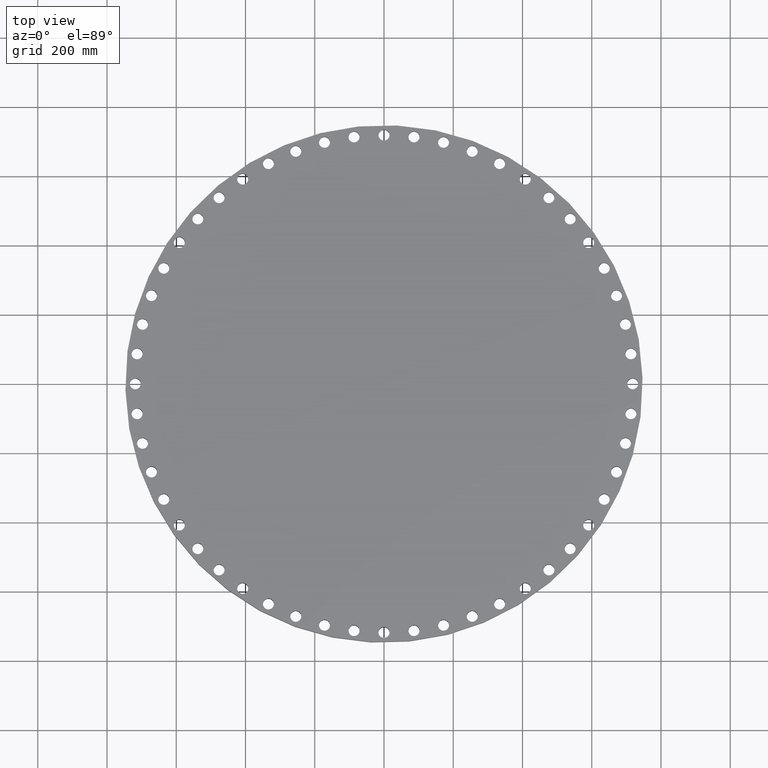
[diagram: clean part render]
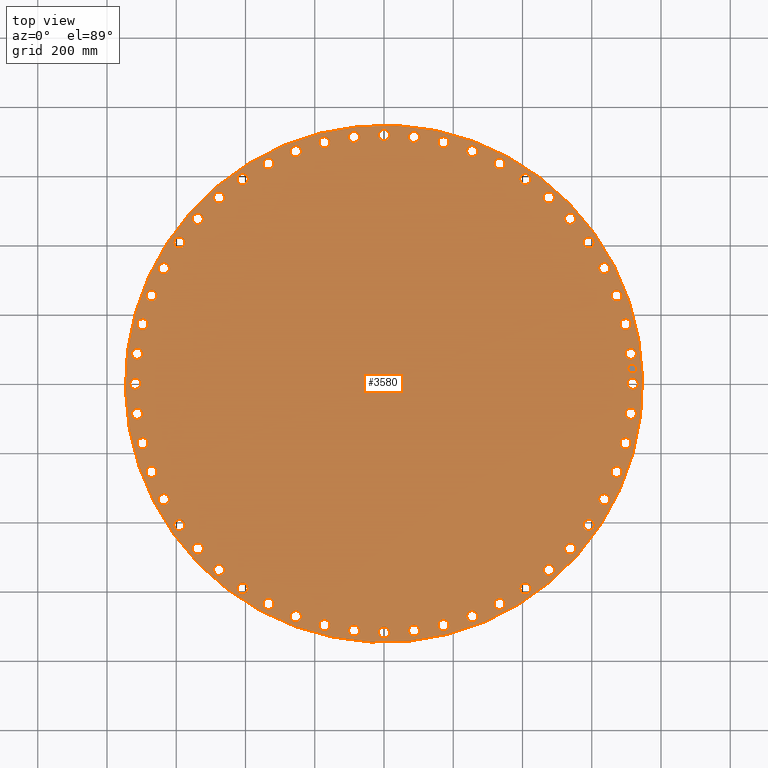
[diagram: same view with one face highlighted and labeled with its STEP entity id]
A machine part, top view. The second image highlights one B-rep face of the part: STEP entity #3580.
In plain terms, the highlighted planar face has unit normal (0, 0, -1).
Its self-contained STEP definition (entity closure, byte-faithful):
#65=AXIS2_PLACEMENT_3D('Circle Axis2P3D',#63,#64,$) ;
#82=AXIS2_PLACEMENT_3D('Circle Axis2P3D',#80,#81,$) ;
#115=AXIS2_PLACEMENT_3D('Circle Axis2P3D',#113,#114,$) ;
#139=AXIS2_PLACEMENT_3D('Circle Axis2P3D',#137,#138,$) ;
#1173=AXIS2_PLACEMENT_3D('Circle Axis2P3D',#1171,#1172,$) ;
#1185=AXIS2_PLACEMENT_3D('Circle Axis2P3D',#1183,#1184,$) ;
#1216=AXIS2_PLACEMENT_3D('Circle Axis2P3D',#1214,#1215,$) ;
#1228=AXIS2_PLACEMENT_3D('Circle Axis2P3D',#1226,#1227,$) ;
#1259=AXIS2_PLACEMENT_3D('Circle Axis2P3D',#1257,#1258,$) ;
#1271=AXIS2_PLACEMENT_3D('Circle Axis2P3D',#1269,#1270,$) ;
#1302=AXIS2_PLACEMENT_3D('Circle Axis2P3D',#1300,#1301,$) ;
#1314=AXIS2_PLACEMENT_3D('Circle Axis2P3D',#1312,#1313,$) ;
#1345=AXIS2_PLACEMENT_3D('Circle Axis2P3D',#1343,#1344,$) ;
#1357=AXIS2_PLACEMENT_3D('Circle Axis2P3D',#1355,#1356,$) ;
#1388=AXIS2_PLACEMENT_3D('Circle Axis2P3D',#1386,#1387,$) ;
#1400=AXIS2_PLACEMENT_3D('Circle Axis2P3D',#1398,#1399,$) ;
#1431=AXIS2_PLACEMENT_3D('Circle Axis2P3D',#1429,#1430,$) ;
#1443=AXIS2_PLACEMENT_3D('Circle Axis2P3D',#1441,#1442,$) ;
#1474=AXIS2_PLACEMENT_3D('Circle Axis2P3D',#1472,#1473,$) ;
#1486=AXIS2_PLACEMENT_3D('Circle Axis2P3D',#1484,#1485,$) ;
#1517=AXIS2_PLACEMENT_3D('Circle Axis2P3D',#1515,#1516,$) ;
#1529=AXIS2_PLACEMENT_3D('Circle Axis2P3D',#1527,#1528,$) ;
#1560=AXIS2_PLACEMENT_3D('Circle Axis2P3D',#1558,#1559,$) ;
#1572=AXIS2_PLACEMENT_3D('Circle Axis2P3D',#1570,#1571,$) ;
#1603=AXIS2_PLACEMENT_3D('Circle Axis2P3D',#1601,#1602,$) ;
#1615=AXIS2_PLACEMENT_3D('Circle Axis2P3D',#1613,#1614,$) ;
#1646=AXIS2_PLACEMENT_3D('Circle Axis2P3D',#1644,#1645,$) ;
#1658=AXIS2_PLACEMENT_3D('Circle Axis2P3D',#1656,#1657,$) ;
#1689=AXIS2_PLACEMENT_3D('Circle Axis2P3D',#1687,#1688,$) ;
#1701=AXIS2_PLACEMENT_3D('Circle Axis2P3D',#1699,#1700,$) ;
#1732=AXIS2_PLACEMENT_3D('Circle Axis2P3D',#1730,#1731,$) ;
#1744=AXIS2_PLACEMENT_3D('Circle Axis2P3D',#1742,#1743,$) ;
#1775=AXIS2_PLACEMENT_3D('Circle Axis2P3D',#1773,#1774,$) ;
#1787=AXIS2_PLACEMENT_3D('Circle Axis2P3D',#1785,#1786,$) ;
#1818=AXIS2_PLACEMENT_3D('Circle Axis2P3D',#1816,#1817,$) ;
#1830=AXIS2_PLACEMENT_3D('Circle Axis2P3D',#1828,#1829,$) ;
#1861=AXIS2_PLACEMENT_3D('Circle Axis2P3D',#1859,#1860,$) ;
#1873=AXIS2_PLACEMENT_3D('Circle Axis2P3D',#1871,#1872,$) ;
#1904=AXIS2_PLACEMENT_3D('Circle Axis2P3D',#1902,#1903,$) ;
#1916=AXIS2_PLACEMENT_3D('Circle Axis2P3D',#1914,#1915,$) ;
#1947=AXIS2_PLACEMENT_3D('Circle Axis2P3D',#1945,#1946,$) ;
#1959=AXIS2_PLACEMENT_3D('Circle Axis2P3D',#1957,#1958,$) ;
#1990=AXIS2_PLACEMENT_3D('Circle Axis2P3D',#1988,#1989,$) ;
#2002=AXIS2_PLACEMENT_3D('Circle Axis2P3D',#2000,#2001,$) ;
#2033=AXIS2_PLACEMENT_3D('Circle Axis2P3D',#2031,#2032,$) ;
#2045=AXIS2_PLACEMENT_3D('Circle Axis2P3D',#2043,#2044,$) ;
#2076=AXIS2_PLACEMENT_3D('Circle Axis2P3D',#2074,#2075,$) ;
#2088=AXIS2_PLACEMENT_3D('Circle Axis2P3D',#2086,#2087,$) ;
#2119=AXIS2_PLACEMENT_3D('Circle Axis2P3D',#2117,#2118,$) ;
#2131=AXIS2_PLACEMENT_3D('Circle Axis2P3D',#2129,#2130,$) ;
#2162=AXIS2_PLACEMENT_3D('Circle Axis2P3D',#2160,#2161,$) ;
#2174=AXIS2_PLACEMENT_3D('Circle Axis2P3D',#2172,#2173,$) ;
#2205=AXIS2_PLACEMENT_3D('Circle Axis2P3D',#2203,#2204,$) ;
#2217=AXIS2_PLACEMENT_3D('Circle Axis2P3D',#2215,#2216,$) ;
#2248=AXIS2_PLACEMENT_3D('Circle Axis2P3D',#2246,#2247,$) ;
#2260=AXIS2_PLACEMENT_3D('Circle Axis2P3D',#2258,#2259,$) ;
#2291=AXIS2_PLACEMENT_3D('Circle Axis2P3D',#2289,#2290,$) ;
#2303=AXIS2_PLACEMENT_3D('Circle Axis2P3D',#2301,#2302,$) ;
#2334=AXIS2_PLACEMENT_3D('Circle Axis2P3D',#2332,#2333,$) ;
#2346=AXIS2_PLACEMENT_3D('Circle Axis2P3D',#2344,#2345,$) ;
#2377=AXIS2_PLACEMENT_3D('Circle Axis2P3D',#2375,#2376,$) ;
#2389=AXIS2_PLACEMENT_3D('Circle Axis2P3D',#2387,#2388,$) ;
#2420=AXIS2_PLACEMENT_3D('Circle Axis2P3D',#2418,#2419,$) ;
#2432=AXIS2_PLACEMENT_3D('Circle Axis2P3D',#2430,#2431,$) ;
#2463=AXIS2_PLACEMENT_3D('Circle Axis2P3D',#2461,#2462,$) ;
#2475=AXIS2_PLACEMENT_3D('Circle Axis2P3D',#2473,#2474,$) ;
#2506=AXIS2_PLACEMENT_3D('Circle Axis2P3D',#2504,#2505,$) ;
#2518=AXIS2_PLACEMENT_3D('Circle Axis2P3D',#2516,#2517,$) ;
#2549=AXIS2_PLACEMENT_3D('Circle Axis2P3D',#2547,#2548,$) ;
#2561=AXIS2_PLACEMENT_3D('Circle Axis2P3D',#2559,#2560,$) ;
#2592=AXIS2_PLACEMENT_3D('Circle Axis2P3D',#2590,#2591,$) ;
#2604=AXIS2_PLACEMENT_3D('Circle Axis2P3D',#2602,#2603,$) ;
#2635=AXIS2_PLACEMENT_3D('Circle Axis2P3D',#2633,#2634,$) ;
#2647=AXIS2_PLACEMENT_3D('Circle Axis2P3D',#2645,#2646,$) ;
#2678=AXIS2_PLACEMENT_3D('Circle Axis2P3D',#2676,#2677,$) ;
#2690=AXIS2_PLACEMENT_3D('Circle Axis2P3D',#2688,#2689,$) ;
#2721=AXIS2_PLACEMENT_3D('Circle Axis2P3D',#2719,#2720,$) ;
#2733=AXIS2_PLACEMENT_3D('Circle Axis2P3D',#2731,#2732,$) ;
#2764=AXIS2_PLACEMENT_3D('Circle Axis2P3D',#2762,#2763,$) ;
#2776=AXIS2_PLACEMENT_3D('Circle Axis2P3D',#2774,#2775,$) ;
#2807=AXIS2_PLACEMENT_3D('Circle Axis2P3D',#2805,#2806,$) ;
#2819=AXIS2_PLACEMENT_3D('Circle Axis2P3D',#2817,#2818,$) ;
#2850=AXIS2_PLACEMENT_3D('Circle Axis2P3D',#2848,#2849,$) ;
#2862=AXIS2_PLACEMENT_3D('Circle Axis2P3D',#2860,#2861,$) ;
#2893=AXIS2_PLACEMENT_3D('Circle Axis2P3D',#2891,#2892,$) ;
#2905=AXIS2_PLACEMENT_3D('Circle Axis2P3D',#2903,#2904,$) ;
#2936=AXIS2_PLACEMENT_3D('Circle Axis2P3D',#2934,#2935,$) ;
#2948=AXIS2_PLACEMENT_3D('Circle Axis2P3D',#2946,#2947,$) ;
#2979=AXIS2_PLACEMENT_3D('Circle Axis2P3D',#2977,#2978,$) ;
#2991=AXIS2_PLACEMENT_3D('Circle Axis2P3D',#2989,#2990,$) ;
#3022=AXIS2_PLACEMENT_3D('Circle Axis2P3D',#3020,#3021,$) ;
#3034=AXIS2_PLACEMENT_3D('Circle Axis2P3D',#3032,#3033,$) ;
#3065=AXIS2_PLACEMENT_3D('Circle Axis2P3D',#3063,#3064,$) ;
#3077=AXIS2_PLACEMENT_3D('Circle Axis2P3D',#3075,#3076,$) ;
#3108=AXIS2_PLACEMENT_3D('Circle Axis2P3D',#3106,#3107,$) ;
#3120=AXIS2_PLACEMENT_3D('Circle Axis2P3D',#3118,#3119,$) ;
#3151=AXIS2_PLACEMENT_3D('Circle Axis2P3D',#3149,#3150,$) ;
#3163=AXIS2_PLACEMENT_3D('Circle Axis2P3D',#3161,#3162,$) ;
#3194=AXIS2_PLACEMENT_3D('Circle Axis2P3D',#3192,#3193,$) ;
#3206=AXIS2_PLACEMENT_3D('Circle Axis2P3D',#3204,#3205,$) ;
#3237=AXIS2_PLACEMENT_3D('Circle Axis2P3D',#3235,#3236,$) ;
#3249=AXIS2_PLACEMENT_3D('Circle Axis2P3D',#3247,#3248,$) ;
#3280=AXIS2_PLACEMENT_3D('Circle Axis2P3D',#3278,#3279,$) ;
#3292=AXIS2_PLACEMENT_3D('Circle Axis2P3D',#3290,#3291,$) ;
#3323=AXIS2_PLACEMENT_3D('Circle Axis2P3D',#3321,#3322,$) ;
#3335=AXIS2_PLACEMENT_3D('Circle Axis2P3D',#3333,#3334,$) ;
#3348=AXIS2_PLACEMENT_3D('Plane Axis2P3D',#3345,#3346,#3347) ;
#3564=AXIS2_PLACEMENT_3D('Circle Axis2P3D',#3562,#3563,$) ;
#3573=AXIS2_PLACEMENT_3D('Circle Axis2P3D',#3571,#3572,$) ;
#46=CARTESIAN_POINT('Vertex',(27.7315108989,0.299640961629,3.25000000001)) ;
#60=CARTESIAN_POINT('Vertex',(28.8284891013,-0.299640961629,3.25000000001)) ;
#63=CARTESIAN_POINT('Axis2P3D Location',(28.2800000001,0.,3.25000000001)) ;
#80=CARTESIAN_POINT('Axis2P3D Location',(28.2800000001,0.,3.25000000001)) ;
#110=CARTESIAN_POINT('Vertex',(-14.0975079627,-25.8053152325,3.25000000001)) ;
#113=CARTESIAN_POINT('Axis2P3D Location',(0.,0.,3.25000000001)) ;
#117=CARTESIAN_POINT('Vertex',(14.0975079627,25.8053152325,3.25000000001)) ;
#137=CARTESIAN_POINT('Axis2P3D Location',(0.,0.,3.25000000001)) ;
#1161=CARTESIAN_POINT('Vertex',(-27.5654346883,3.04520802057,3.25000000001)) ;
#1168=CARTESIAN_POINT('Vertex',(-28.5821792309,3.7723466147,3.25000000001)) ;
#1171=CARTESIAN_POINT('Axis2P3D Location',(-28.0738069596,3.40877731763,3.25000000001)) ;
#1183=CARTESIAN_POINT('Axis2P3D Location',(-28.0738069596,3.40877731763,3.25000000001)) ;
#1204=CARTESIAN_POINT('Vertex',(26.997392368,-6.34565101262,3.25000000001)) ;
#1211=CARTESIAN_POINT('Vertex',(27.9190768259,-7.19004295954,3.25000000001)) ;
#1214=CARTESIAN_POINT('Axis2P3D Location',(27.4582345969,-6.76784698608,3.25000000001)) ;
#1226=CARTESIAN_POINT('Axis2P3D Location',(27.4582345969,-6.76784698608,3.25000000001)) ;
#1247=CARTESIAN_POINT('Vertex',(-26.997392368,6.34565101262,3.25000000001)) ;
#1254=CARTESIAN_POINT('Vertex',(-27.9190768259,7.19004295954,3.25000000001)) ;
#1257=CARTESIAN_POINT('Axis2P3D Location',(-27.4582345969,6.76784698608,3.25000000001)) ;
#1269=CARTESIAN_POINT('Axis2P3D Location',(-27.4582345969,6.76784698608,3.25000000001)) ;
#1290=CARTESIAN_POINT('Vertex',(26.0356672741,-9.55356012374,3.25000000001)) ;
#1297=CARTESIAN_POINT('Vertex',(26.8488514124,-10.5028922875,3.25000000001)) ;
#1300=CARTESIAN_POINT('Axis2P3D Location',(26.4422593432,-10.0282262056,3.25000000001)) ;
#1312=CARTESIAN_POINT('Axis2P3D Location',(26.4422593432,-10.0282262056,3.25000000001)) ;
#1333=CARTESIAN_POINT('Vertex',(-26.0356672741,9.55356012374,3.25000000001)) ;
#1340=CARTESIAN_POINT('Vertex',(-26.8488514124,10.5028922875,3.25000000001)) ;
#1343=CARTESIAN_POINT('Axis2P3D Location',(-26.4422593432,10.0282262056,3.25000000001)) ;
#1355=CARTESIAN_POINT('Axis2P3D Location',(-26.4422593432,10.0282262056,3.25000000001)) ;
#1376=CARTESIAN_POINT('Vertex',(24.6942835241,-12.6221568155,3.25000000001)) ;
#1383=CARTESIAN_POINT('Vertex',(25.3871092871,-13.6625857954,3.25000000001)) ;
#1386=CARTESIAN_POINT('Axis2P3D Location',(25.0406964056,-13.1423713055,3.25000000001)) ;
#1398=CARTESIAN_POINT('Axis2P3D Location',(25.0406964056,-13.1423713055,3.25000000001)) ;
#1419=CARTESIAN_POINT('Vertex',(-24.6942835241,12.6221568155,3.25000000001)) ;
#1426=CARTESIAN_POINT('Vertex',(-25.3871092871,13.6625857954,3.25000000001)) ;
#1429=CARTESIAN_POINT('Axis2P3D Location',(-25.0406964056,13.1423713055,3.25000000001)) ;
#1441=CARTESIAN_POINT('Axis2P3D Location',(-25.0406964056,13.1423713055,3.25000000001)) ;
#1462=CARTESIAN_POINT('Vertex',(22.9928015137,-15.5066940383,3.25000000001)) ;
#1469=CARTESIAN_POINT('Vertex',(23.5551659415,-16.623048037,3.25000000001)) ;
#1472=CARTESIAN_POINT('Axis2P3D Location',(23.2739837276,-16.0648710376,3.25000000001)) ;
#1484=CARTESIAN_POINT('Axis2P3D Location',(23.2739837276,-16.0648710376,3.25000000001)) ;
#1505=CARTESIAN_POINT('Vertex',(-22.9928015137,15.5066940383,3.25000000001)) ;
#1512=CARTESIAN_POINT('Vertex',(-23.5551659415,16.623048037,3.25000000001)) ;
#1515=CARTESIAN_POINT('Axis2P3D Location',(-23.2739837276,16.0648710376,3.25000000001)) ;
#1527=CARTESIAN_POINT('Axis2P3D Location',(-23.2739837276,16.0648710376,3.25000000001)) ;
#1548=CARTESIAN_POINT('Vertex',(20.9560326819,-18.165108744,3.25000000001)) ;
#1555=CARTESIAN_POINT('Vertex',(21.3797352349,-19.3411088063,3.25000000001)) ;
#1558=CARTESIAN_POINT('Axis2P3D Location',(21.1678839584,-18.7531087751,3.25000000001)) ;
#1570=CARTESIAN_POINT('Axis2P3D Location',(21.1678839584,-18.7531087751,3.25000000001)) ;
#1591=CARTESIAN_POINT('Vertex',(-20.9560326819,18.165108744,3.25000000001)) ;
#1598=CARTESIAN_POINT('Vertex',(-21.3797352349,19.3411088063,3.25000000001)) ;
#1601=CARTESIAN_POINT('Axis2P3D Location',(-21.1678839584,18.7531087751,3.25000000001)) ;
#1613=CARTESIAN_POINT('Axis2P3D Location',(-21.1678839584,18.7531087751,3.25000000001)) ;
#1634=CARTESIAN_POINT('Vertex',(18.6136777047,-20.5586352599,3.25000000001)) ;
#1641=CARTESIAN_POINT('Vertex',(18.8925398455,-21.7771326568,3.25000000001)) ;
#1644=CARTESIAN_POINT('Axis2P3D Location',(18.7531087751,-21.1678839584,3.25000000001)) ;
#1656=CARTESIAN_POINT('Axis2P3D Location',(18.7531087751,-21.1678839584,3.25000000001)) ;
#1677=CARTESIAN_POINT('Vertex',(-18.6136777047,20.5586352599,3.25000000001)) ;
#1684=CARTESIAN_POINT('Vertex',(-18.8925398455,21.7771326568,3.25000000001)) ;
#1687=CARTESIAN_POINT('Axis2P3D Location',(-18.7531087751,21.1678839584,3.25000000001)) ;
#1699=CARTESIAN_POINT('Axis2P3D Location',(-18.7531087751,21.1678839584,3.25000000001)) ;
#1720=CARTESIAN_POINT('Vertex',(15.9998933923,-22.6523705797,3.25000000001)) ;
#1727=CARTESIAN_POINT('Vertex',(16.129848683,-23.8955968754,3.25000000001)) ;
#1730=CARTESIAN_POINT('Axis2P3D Location',(16.0648710376,-23.2739837276,3.25000000001)) ;
#1742=CARTESIAN_POINT('Axis2P3D Location',(16.0648710376,-23.2739837276,3.25000000001)) ;
#1763=CARTESIAN_POINT('Vertex',(-15.9998933923,22.6523705797,3.25000000001)) ;
#1770=CARTESIAN_POINT('Vertex',(-16.129848683,23.8955968754,3.25000000001)) ;
#1773=CARTESIAN_POINT('Axis2P3D Location',(-16.0648710376,23.2739837276,3.25000000001)) ;
#1785=CARTESIAN_POINT('Axis2P3D Location',(-16.0648710376,23.2739837276,3.25000000001)) ;
#1806=CARTESIAN_POINT('Vertex',(13.1527946055,-24.4157833278,3.25000000001)) ;
#1813=CARTESIAN_POINT('Vertex',(13.1319480054,-25.6656094834,3.25000000001)) ;
#1816=CARTESIAN_POINT('Axis2P3D Location',(13.1423713055,-25.0406964056,3.25000000001)) ;
#1828=CARTESIAN_POINT('Axis2P3D Location',(13.1423713055,-25.0406964056,3.25000000001)) ;
#1849=CARTESIAN_POINT('Vertex',(-13.1527946055,24.4157833278,3.25000000001)) ;
#1856=CARTESIAN_POINT('Vertex',(-13.1319480054,25.6656094834,3.25000000001)) ;
#1859=CARTESIAN_POINT('Axis2P3D Location',(-13.1423713055,25.0406964056,3.25000000001)) ;
#1871=CARTESIAN_POINT('Axis2P3D Location',(-13.1423713055,25.0406964056,3.25000000001)) ;
#1892=CARTESIAN_POINT('Vertex',(10.1138984559,-25.8231589754,3.25000000001)) ;
#1899=CARTESIAN_POINT('Vertex',(9.94255395528,-27.0613597111,3.25000000001)) ;
#1902=CARTESIAN_POINT('Axis2P3D Location',(10.0282262056,-26.4422593432,3.25000000001)) ;
#1914=CARTESIAN_POINT('Axis2P3D Location',(10.0282262056,-26.4422593432,3.25000000001)) ;
#1935=CARTESIAN_POINT('Vertex',(-10.1138984559,25.8231589754,3.25000000001)) ;
#1942=CARTESIAN_POINT('Vertex',(-9.94255395528,27.0613597111,3.25000000001)) ;
#1945=CARTESIAN_POINT('Axis2P3D Location',(-10.0282262056,26.4422593432,3.25000000001)) ;
#1957=CARTESIAN_POINT('Axis2P3D Location',(-10.0282262056,26.4422593432,3.25000000001)) ;
#1978=CARTESIAN_POINT('Vertex',(6.92751889233,-26.8539748164,3.25000000001)) ;
#1985=CARTESIAN_POINT('Vertex',(6.60817507982,-28.0624943774,3.25000000001)) ;
#1988=CARTESIAN_POINT('Axis2P3D Location',(6.76784698608,-27.4582345969,3.25000000001)) ;
#2000=CARTESIAN_POINT('Axis2P3D Location',(6.76784698608,-27.4582345969,3.25000000001)) ;
#2021=CARTESIAN_POINT('Vertex',(-6.92751889233,26.8539748164,3.25000000001)) ;
#2028=CARTESIAN_POINT('Vertex',(-6.60817507982,28.0624943774,3.25000000001)) ;
#2031=CARTESIAN_POINT('Axis2P3D Location',(-6.76784698608,27.4582345969,3.25000000001)) ;
#2043=CARTESIAN_POINT('Axis2P3D Location',(-6.76784698608,27.4582345969,3.25000000001)) ;
#2064=CARTESIAN_POINT('Vertex',(3.64012050387,-27.4931992347,3.25000000001)) ;
#2071=CARTESIAN_POINT('Vertex',(3.17743413139,-28.6544146845,3.25000000001)) ;
#2074=CARTESIAN_POINT('Axis2P3D Location',(3.40877731763,-28.0738069596,3.25000000001)) ;
#2086=CARTESIAN_POINT('Axis2P3D Location',(3.40877731763,-28.0738069596,3.25000000001)) ;
#2107=CARTESIAN_POINT('Vertex',(-3.64012050387,27.4931992347,3.25000000001)) ;
#2114=CARTESIAN_POINT('Vertex',(-3.17743413139,28.6544146845,3.25000000001)) ;
#2117=CARTESIAN_POINT('Axis2P3D Location',(-3.40877731763,28.0738069596,3.25000000001)) ;
#2129=CARTESIAN_POINT('Axis2P3D Location',(-3.40877731763,28.0738069596,3.25000000001)) ;
#2150=CARTESIAN_POINT('Vertex',(0.299640961629,-27.7315108989,3.25000000001)) ;
#2157=CARTESIAN_POINT('Vertex',(-0.299640961629,-28.8284891013,3.25000000001)) ;
#2160=CARTESIAN_POINT('Axis2P3D Location',(8.01107200131E-015,-28.2800000001,3.25000000001)) ;
#2172=CARTESIAN_POINT('Axis2P3D Location',(8.01107200131E-015,-28.2800000001,3.25000000001)) ;
#2193=CARTESIAN_POINT('Vertex',(-0.299640961629,27.7315108989,3.25000000001)) ;
#2200=CARTESIAN_POINT('Vertex',(0.299640961629,28.8284891013,3.25000000001)) ;
#2203=CARTESIAN_POINT('Axis2P3D Location',(-5.194951722E-015,28.2800000001,3.25000000001)) ;
#2215=CARTESIAN_POINT('Axis2P3D Location',(-5.194951722E-015,28.2800000001,3.25000000001)) ;
#2236=CARTESIAN_POINT('Vertex',(-3.04520802057,-27.5654346883,3.25000000001)) ;
#2243=CARTESIAN_POINT('Vertex',(-3.7723466147,-28.5821792309,3.25000000001)) ;
#2246=CARTESIAN_POINT('Axis2P3D Location',(-3.40877731763,-28.0738069596,3.25000000001)) ;
#2258=CARTESIAN_POINT('Axis2P3D Location',(-3.40877731763,-28.0738069596,3.25000000001)) ;
#2279=CARTESIAN_POINT('Vertex',(3.04520802057,27.5654346883,3.25000000001)) ;
#2286=CARTESIAN_POINT('Vertex',(3.7723466147,28.5821792309,3.25000000001)) ;
#2289=CARTESIAN_POINT('Axis2P3D Location',(3.40877731763,28.0738069596,3.25000000001)) ;
#2301=CARTESIAN_POINT('Axis2P3D Location',(3.40877731763,28.0738069596,3.25000000001)) ;
#2322=CARTESIAN_POINT('Vertex',(-6.34565101262,-26.997392368,3.25000000001)) ;
#2329=CARTESIAN_POINT('Vertex',(-7.19004295954,-27.9190768259,3.25000000001)) ;
#2332=CARTESIAN_POINT('Axis2P3D Location',(-6.76784698608,-27.4582345969,3.25000000001)) ;
#2344=CARTESIAN_POINT('Axis2P3D Location',(-6.76784698608,-27.4582345969,3.25000000001)) ;
#2365=CARTESIAN_POINT('Vertex',(6.34565101262,26.997392368,3.25000000001)) ;
#2372=CARTESIAN_POINT('Vertex',(7.19004295954,27.9190768259,3.25000000001)) ;
#2375=CARTESIAN_POINT('Axis2P3D Location',(6.76784698608,27.4582345969,3.25000000001)) ;
#2387=CARTESIAN_POINT('Axis2P3D Location',(6.76784698608,27.4582345969,3.25000000001)) ;
#2408=CARTESIAN_POINT('Vertex',(-9.55356012374,-26.0356672741,3.25000000001)) ;
#2415=CARTESIAN_POINT('Vertex',(-10.5028922875,-26.8488514124,3.25000000001)) ;
#2418=CARTESIAN_POINT('Axis2P3D Location',(-10.0282262056,-26.4422593432,3.25000000001)) ;
#2430=CARTESIAN_POINT('Axis2P3D Location',(-10.0282262056,-26.4422593432,3.25000000001)) ;
#2451=CARTESIAN_POINT('Vertex',(9.55356012374,26.0356672741,3.25000000001)) ;
#2458=CARTESIAN_POINT('Vertex',(10.5028922875,26.8488514124,3.25000000001)) ;
#2461=CARTESIAN_POINT('Axis2P3D Location',(10.0282262056,26.4422593432,3.25000000001)) ;
#2473=CARTESIAN_POINT('Axis2P3D Location',(10.0282262056,26.4422593432,3.25000000001)) ;
#2494=CARTESIAN_POINT('Vertex',(-12.6221568155,-24.6942835241,3.25000000001)) ;
#2501=CARTESIAN_POINT('Vertex',(-13.6625857954,-25.3871092871,3.25000000001)) ;
#2504=CARTESIAN_POINT('Axis2P3D Location',(-13.1423713055,-25.0406964056,3.25000000001)) ;
#2516=CARTESIAN_POINT('Axis2P3D Location',(-13.1423713055,-25.0406964056,3.25000000001)) ;
#2537=CARTESIAN_POINT('Vertex',(12.6221568155,24.6942835241,3.25000000001)) ;
#2544=CARTESIAN_POINT('Vertex',(13.6625857954,25.3871092871,3.25000000001)) ;
#2547=CARTESIAN_POINT('Axis2P3D Location',(13.1423713055,25.0406964056,3.25000000001)) ;
#2559=CARTESIAN_POINT('Axis2P3D Location',(13.1423713055,25.0406964056,3.25000000001)) ;
#2580=CARTESIAN_POINT('Vertex',(-15.5066940383,-22.9928015137,3.25000000001)) ;
#2587=CARTESIAN_POINT('Vertex',(-16.623048037,-23.5551659415,3.25000000001)) ;
#2590=CARTESIAN_POINT('Axis2P3D Location',(-16.0648710376,-23.2739837276,3.25000000001)) ;
#2602=CARTESIAN_POINT('Axis2P3D Location',(-16.0648710376,-23.2739837276,3.25000000001)) ;
#2623=CARTESIAN_POINT('Vertex',(15.5066940383,22.9928015137,3.25000000001)) ;
#2630=CARTESIAN_POINT('Vertex',(16.623048037,23.5551659415,3.25000000001)) ;
#2633=CARTESIAN_POINT('Axis2P3D Location',(16.0648710376,23.2739837276,3.25000000001)) ;
#2645=CARTESIAN_POINT('Axis2P3D Location',(16.0648710376,23.2739837276,3.25000000001)) ;
#2666=CARTESIAN_POINT('Vertex',(-18.165108744,-20.9560326819,3.25000000001)) ;
#2673=CARTESIAN_POINT('Vertex',(-19.3411088063,-21.3797352349,3.25000000001)) ;
#2676=CARTESIAN_POINT('Axis2P3D Location',(-18.7531087751,-21.1678839584,3.25000000001)) ;
#2688=CARTESIAN_POINT('Axis2P3D Location',(-18.7531087751,-21.1678839584,3.25000000001)) ;
#2709=CARTESIAN_POINT('Vertex',(18.165108744,20.9560326819,3.25000000001)) ;
#2716=CARTESIAN_POINT('Vertex',(19.3411088063,21.3797352349,3.25000000001)) ;
#2719=CARTESIAN_POINT('Axis2P3D Location',(18.7531087751,21.1678839584,3.25000000001)) ;
#2731=CARTESIAN_POINT('Axis2P3D Location',(18.7531087751,21.1678839584,3.25000000001)) ;
#2752=CARTESIAN_POINT('Vertex',(-20.5586352599,-18.6136777047,3.25000000001)) ;
#2759=CARTESIAN_POINT('Vertex',(-21.7771326568,-18.8925398455,3.25000000001)) ;
#2762=CARTESIAN_POINT('Axis2P3D Location',(-21.1678839584,-18.7531087751,3.25000000001)) ;
#2774=CARTESIAN_POINT('Axis2P3D Location',(-21.1678839584,-18.7531087751,3.25000000001)) ;
#2795=CARTESIAN_POINT('Vertex',(20.5586352599,18.6136777047,3.25000000001)) ;
#2802=CARTESIAN_POINT('Vertex',(21.7771326568,18.8925398455,3.25000000001)) ;
#2805=CARTESIAN_POINT('Axis2P3D Location',(21.1678839584,18.7531087751,3.25000000001)) ;
#2817=CARTESIAN_POINT('Axis2P3D Location',(21.1678839584,18.7531087751,3.25000000001)) ;
#2838=CARTESIAN_POINT('Vertex',(-22.6523705797,-15.9998933923,3.25000000001)) ;
#2845=CARTESIAN_POINT('Vertex',(-23.8955968754,-16.129848683,3.25000000001)) ;
#2848=CARTESIAN_POINT('Axis2P3D Location',(-23.2739837276,-16.0648710376,3.25000000001)) ;
#2860=CARTESIAN_POINT('Axis2P3D Location',(-23.2739837276,-16.0648710376,3.25000000001)) ;
#2881=CARTESIAN_POINT('Vertex',(22.6523705797,15.9998933923,3.25000000001)) ;
#2888=CARTESIAN_POINT('Vertex',(23.8955968754,16.129848683,3.25000000001)) ;
#2891=CARTESIAN_POINT('Axis2P3D Location',(23.2739837276,16.0648710376,3.25000000001)) ;
#2903=CARTESIAN_POINT('Axis2P3D Location',(23.2739837276,16.0648710376,3.25000000001)) ;
#2924=CARTESIAN_POINT('Vertex',(-24.4157833278,-13.1527946055,3.25000000001)) ;
#2931=CARTESIAN_POINT('Vertex',(-25.6656094834,-13.1319480054,3.25000000001)) ;
#2934=CARTESIAN_POINT('Axis2P3D Location',(-25.0406964056,-13.1423713055,3.25000000001)) ;
#2946=CARTESIAN_POINT('Axis2P3D Location',(-25.0406964056,-13.1423713055,3.25000000001)) ;
#2967=CARTESIAN_POINT('Vertex',(24.4157833278,13.1527946055,3.25000000001)) ;
#2974=CARTESIAN_POINT('Vertex',(25.6656094834,13.1319480054,3.25000000001)) ;
#2977=CARTESIAN_POINT('Axis2P3D Location',(25.0406964056,13.1423713055,3.25000000001)) ;
#2989=CARTESIAN_POINT('Axis2P3D Location',(25.0406964056,13.1423713055,3.25000000001)) ;
#3010=CARTESIAN_POINT('Vertex',(-25.8231589754,-10.1138984559,3.25000000001)) ;
#3017=CARTESIAN_POINT('Vertex',(-27.0613597111,-9.94255395528,3.25000000001)) ;
#3020=CARTESIAN_POINT('Axis2P3D Location',(-26.4422593432,-10.0282262056,3.25000000001)) ;
#3032=CARTESIAN_POINT('Axis2P3D Location',(-26.4422593432,-10.0282262056,3.25000000001)) ;
#3053=CARTESIAN_POINT('Vertex',(25.8231589754,10.1138984559,3.25000000001)) ;
#3060=CARTESIAN_POINT('Vertex',(27.0613597111,9.94255395528,3.25000000001)) ;
#3063=CARTESIAN_POINT('Axis2P3D Location',(26.4422593432,10.0282262056,3.25000000001)) ;
#3075=CARTESIAN_POINT('Axis2P3D Location',(26.4422593432,10.0282262056,3.25000000001)) ;
#3096=CARTESIAN_POINT('Vertex',(-26.8539748164,-6.92751889233,3.25000000001)) ;
#3103=CARTESIAN_POINT('Vertex',(-28.0624943774,-6.60817507982,3.25000000001)) ;
#3106=CARTESIAN_POINT('Axis2P3D Location',(-27.4582345969,-6.76784698608,3.25000000001)) ;
#3118=CARTESIAN_POINT('Axis2P3D Location',(-27.4582345969,-6.76784698608,3.25000000001)) ;
#3139=CARTESIAN_POINT('Vertex',(26.8539748164,6.92751889233,3.25000000001)) ;
#3146=CARTESIAN_POINT('Vertex',(28.0624943774,6.60817507982,3.25000000001)) ;
#3149=CARTESIAN_POINT('Axis2P3D Location',(27.4582345969,6.76784698608,3.25000000001)) ;
#3161=CARTESIAN_POINT('Axis2P3D Location',(27.4582345969,6.76784698608,3.25000000001)) ;
#3182=CARTESIAN_POINT('Vertex',(-27.4931992347,-3.64012050387,3.25000000001)) ;
#3189=CARTESIAN_POINT('Vertex',(-28.6544146845,-3.17743413139,3.25000000001)) ;
#3192=CARTESIAN_POINT('Axis2P3D Location',(-28.0738069596,-3.40877731763,3.25000000001)) ;
#3204=CARTESIAN_POINT('Axis2P3D Location',(-28.0738069596,-3.40877731763,3.25000000001)) ;
#3225=CARTESIAN_POINT('Vertex',(27.4931992347,3.64012050387,3.25000000001)) ;
#3232=CARTESIAN_POINT('Vertex',(28.6544146845,3.17743413139,3.25000000001)) ;
#3235=CARTESIAN_POINT('Axis2P3D Location',(28.0738069596,3.40877731763,3.25000000001)) ;
#3247=CARTESIAN_POINT('Axis2P3D Location',(28.0738069596,3.40877731763,3.25000000001)) ;
#3268=CARTESIAN_POINT('Vertex',(-27.7315108989,-0.299640961629,3.25000000001)) ;
#3275=CARTESIAN_POINT('Vertex',(-28.8284891013,0.299640961629,3.25000000001)) ;
#3278=CARTESIAN_POINT('Axis2P3D Location',(-28.2800000001,-1.60221440026E-014,3.25000000001)) ;
#3290=CARTESIAN_POINT('Axis2P3D Location',(-28.2800000001,-1.60221440026E-014,3.25000000001)) ;
#3311=CARTESIAN_POINT('Vertex',(27.5654346883,-3.04520802057,3.25000000001)) ;
#3318=CARTESIAN_POINT('Vertex',(28.5821792309,-3.7723466147,3.25000000001)) ;
#3321=CARTESIAN_POINT('Axis2P3D Location',(28.0738069596,-3.40877731763,3.25000000001)) ;
#3333=CARTESIAN_POINT('Axis2P3D Location',(28.0738069596,-3.40877731763,3.25000000001)) ;
#3345=CARTESIAN_POINT('Axis2P3D Location',(0.,29.4050000001,3.25000000001)) ;
#3562=CARTESIAN_POINT('Axis2P3D Location',(28.2284046735,1.70750390711,3.25000000001)) ;
#3566=CARTESIAN_POINT('Vertex',(28.1982154248,2.20659168422,3.25000000001)) ;
#3568=CARTESIAN_POINT('Vertex',(28.2585939223,1.20841613,3.25000000001)) ;
#3571=CARTESIAN_POINT('Axis2P3D Location',(28.2284046735,1.70750390711,3.25000000001)) ;
#64=DIRECTION('Axis2P3D Direction',(0.,-0.,-0.0393700787402)) ;
#81=DIRECTION('Axis2P3D Direction',(0.,-0.,-0.0393700787402)) ;
#114=DIRECTION('Axis2P3D Direction',(0.,0.,-0.0393700787402)) ;
#138=DIRECTION('Axis2P3D Direction',(0.,0.,-0.0393700787402)) ;
#1172=DIRECTION('Axis2P3D Direction',(0.,0.,-0.0393700787402)) ;
#1184=DIRECTION('Axis2P3D Direction',(0.,0.,-0.0393700787402)) ;
#1215=DIRECTION('Axis2P3D Direction',(0.,-0.,-0.0393700787402)) ;
#1227=DIRECTION('Axis2P3D Direction',(0.,-0.,-0.0393700787402)) ;
#1258=DIRECTION('Axis2P3D Direction',(0.,0.,-0.0393700787402)) ;
#1270=DIRECTION('Axis2P3D Direction',(0.,0.,-0.0393700787402)) ;
#1301=DIRECTION('Axis2P3D Direction',(0.,-0.,-0.0393700787402)) ;
#1313=DIRECTION('Axis2P3D Direction',(0.,-0.,-0.0393700787402)) ;
#1344=DIRECTION('Axis2P3D Direction',(0.,0.,-0.0393700787402)) ;
#1356=DIRECTION('Axis2P3D Direction',(0.,0.,-0.0393700787402)) ;
#1387=DIRECTION('Axis2P3D Direction',(0.,-0.,-0.0393700787402)) ;
#1399=DIRECTION('Axis2P3D Direction',(0.,-0.,-0.0393700787402)) ;
#1430=DIRECTION('Axis2P3D Direction',(0.,0.,-0.0393700787402)) ;
#1442=DIRECTION('Axis2P3D Direction',(0.,0.,-0.0393700787402)) ;
#1473=DIRECTION('Axis2P3D Direction',(0.,-0.,-0.0393700787402)) ;
#1485=DIRECTION('Axis2P3D Direction',(0.,-0.,-0.0393700787402)) ;
#1516=DIRECTION('Axis2P3D Direction',(0.,0.,-0.0393700787402)) ;
#1528=DIRECTION('Axis2P3D Direction',(0.,0.,-0.0393700787402)) ;
#1559=DIRECTION('Axis2P3D Direction',(0.,-0.,-0.0393700787402)) ;
#1571=DIRECTION('Axis2P3D Direction',(0.,-0.,-0.0393700787402)) ;
#1602=DIRECTION('Axis2P3D Direction',(0.,0.,-0.0393700787402)) ;
#1614=DIRECTION('Axis2P3D Direction',(0.,0.,-0.0393700787402)) ;
#1645=DIRECTION('Axis2P3D Direction',(0.,-0.,-0.0393700787402)) ;
#1657=DIRECTION('Axis2P3D Direction',(0.,-0.,-0.0393700787402)) ;
#1688=DIRECTION('Axis2P3D Direction',(0.,0.,-0.0393700787402)) ;
#1700=DIRECTION('Axis2P3D Direction',(0.,0.,-0.0393700787402)) ;
#1731=DIRECTION('Axis2P3D Direction',(0.,-0.,-0.0393700787402)) ;
#1743=DIRECTION('Axis2P3D Direction',(0.,-0.,-0.0393700787402)) ;
#1774=DIRECTION('Axis2P3D Direction',(0.,0.,-0.0393700787402)) ;
#1786=DIRECTION('Axis2P3D Direction',(0.,0.,-0.0393700787402)) ;
#1817=DIRECTION('Axis2P3D Direction',(0.,-0.,-0.0393700787402)) ;
#1829=DIRECTION('Axis2P3D Direction',(0.,-0.,-0.0393700787402)) ;
#1860=DIRECTION('Axis2P3D Direction',(0.,0.,-0.0393700787402)) ;
#1872=DIRECTION('Axis2P3D Direction',(0.,0.,-0.0393700787402)) ;
#1903=DIRECTION('Axis2P3D Direction',(0.,-0.,-0.0393700787402)) ;
#1915=DIRECTION('Axis2P3D Direction',(0.,-0.,-0.0393700787402)) ;
#1946=DIRECTION('Axis2P3D Direction',(0.,0.,-0.0393700787402)) ;
#1958=DIRECTION('Axis2P3D Direction',(0.,0.,-0.0393700787402)) ;
#1989=DIRECTION('Axis2P3D Direction',(0.,-0.,-0.0393700787402)) ;
#2001=DIRECTION('Axis2P3D Direction',(0.,-0.,-0.0393700787402)) ;
#2032=DIRECTION('Axis2P3D Direction',(0.,0.,-0.0393700787402)) ;
#2044=DIRECTION('Axis2P3D Direction',(0.,0.,-0.0393700787402)) ;
#2075=DIRECTION('Axis2P3D Direction',(0.,-0.,-0.0393700787402)) ;
#2087=DIRECTION('Axis2P3D Direction',(0.,-0.,-0.0393700787402)) ;
#2118=DIRECTION('Axis2P3D Direction',(0.,0.,-0.0393700787402)) ;
#2130=DIRECTION('Axis2P3D Direction',(0.,0.,-0.0393700787402)) ;
#2161=DIRECTION('Axis2P3D Direction',(0.,-0.,-0.0393700787402)) ;
#2173=DIRECTION('Axis2P3D Direction',(0.,-0.,-0.0393700787402)) ;
#2204=DIRECTION('Axis2P3D Direction',(0.,0.,-0.0393700787402)) ;
#2216=DIRECTION('Axis2P3D Direction',(0.,0.,-0.0393700787402)) ;
#2247=DIRECTION('Axis2P3D Direction',(-0.,0.,-0.0393700787402)) ;
#2259=DIRECTION('Axis2P3D Direction',(-0.,0.,-0.0393700787402)) ;
#2290=DIRECTION('Axis2P3D Direction',(0.,0.,-0.0393700787402)) ;
#2302=DIRECTION('Axis2P3D Direction',(0.,0.,-0.0393700787402)) ;
#2333=DIRECTION('Axis2P3D Direction',(-0.,0.,-0.0393700787402)) ;
#2345=DIRECTION('Axis2P3D Direction',(-0.,0.,-0.0393700787402)) ;
#2376=DIRECTION('Axis2P3D Direction',(0.,0.,-0.0393700787402)) ;
#2388=DIRECTION('Axis2P3D Direction',(0.,0.,-0.0393700787402)) ;
#2419=DIRECTION('Axis2P3D Direction',(-0.,0.,-0.0393700787402)) ;
#2431=DIRECTION('Axis2P3D Direction',(-0.,0.,-0.0393700787402)) ;
#2462=DIRECTION('Axis2P3D Direction',(0.,0.,-0.0393700787402)) ;
#2474=DIRECTION('Axis2P3D Direction',(0.,0.,-0.0393700787402)) ;
#2505=DIRECTION('Axis2P3D Direction',(-0.,0.,-0.0393700787402)) ;
#2517=DIRECTION('Axis2P3D Direction',(-0.,0.,-0.0393700787402)) ;
#2548=DIRECTION('Axis2P3D Direction',(0.,0.,-0.0393700787402)) ;
#2560=DIRECTION('Axis2P3D Direction',(0.,0.,-0.0393700787402)) ;
#2591=DIRECTION('Axis2P3D Direction',(-0.,0.,-0.0393700787402)) ;
#2603=DIRECTION('Axis2P3D Direction',(-0.,0.,-0.0393700787402)) ;
#2634=DIRECTION('Axis2P3D Direction',(0.,0.,-0.0393700787402)) ;
#2646=DIRECTION('Axis2P3D Direction',(0.,0.,-0.0393700787402)) ;
#2677=DIRECTION('Axis2P3D Direction',(-0.,0.,-0.0393700787402)) ;
#2689=DIRECTION('Axis2P3D Direction',(-0.,0.,-0.0393700787402)) ;
#2720=DIRECTION('Axis2P3D Direction',(0.,0.,-0.0393700787402)) ;
#2732=DIRECTION('Axis2P3D Direction',(0.,0.,-0.0393700787402)) ;
#2763=DIRECTION('Axis2P3D Direction',(-0.,0.,-0.0393700787402)) ;
#2775=DIRECTION('Axis2P3D Direction',(-0.,0.,-0.0393700787402)) ;
#2806=DIRECTION('Axis2P3D Direction',(0.,0.,-0.0393700787402)) ;
#2818=DIRECTION('Axis2P3D Direction',(0.,0.,-0.0393700787402)) ;
#2849=DIRECTION('Axis2P3D Direction',(-0.,0.,-0.0393700787402)) ;
#2861=DIRECTION('Axis2P3D Direction',(-0.,0.,-0.0393700787402)) ;
#2892=DIRECTION('Axis2P3D Direction',(0.,0.,-0.0393700787402)) ;
#2904=DIRECTION('Axis2P3D Direction',(0.,0.,-0.0393700787402)) ;
#2935=DIRECTION('Axis2P3D Direction',(-0.,0.,-0.0393700787402)) ;
#2947=DIRECTION('Axis2P3D Direction',(-0.,0.,-0.0393700787402)) ;
#2978=DIRECTION('Axis2P3D Direction',(0.,0.,-0.0393700787402)) ;
#2990=DIRECTION('Axis2P3D Direction',(0.,0.,-0.0393700787402)) ;
#3021=DIRECTION('Axis2P3D Direction',(-0.,0.,-0.0393700787402)) ;
#3033=DIRECTION('Axis2P3D Direction',(-0.,0.,-0.0393700787402)) ;
#3064=DIRECTION('Axis2P3D Direction',(0.,0.,-0.0393700787402)) ;
#3076=DIRECTION('Axis2P3D Direction',(0.,0.,-0.0393700787402)) ;
#3107=DIRECTION('Axis2P3D Direction',(-0.,0.,-0.0393700787402)) ;
#3119=DIRECTION('Axis2P3D Direction',(-0.,0.,-0.0393700787402)) ;
#3150=DIRECTION('Axis2P3D Direction',(0.,0.,-0.0393700787402)) ;
#3162=DIRECTION('Axis2P3D Direction',(0.,0.,-0.0393700787402)) ;
#3193=DIRECTION('Axis2P3D Direction',(-0.,0.,-0.0393700787402)) ;
#3205=DIRECTION('Axis2P3D Direction',(-0.,0.,-0.0393700787402)) ;
#3236=DIRECTION('Axis2P3D Direction',(0.,0.,-0.0393700787402)) ;
#3248=DIRECTION('Axis2P3D Direction',(0.,0.,-0.0393700787402)) ;
#3279=DIRECTION('Axis2P3D Direction',(-0.,0.,-0.0393700787402)) ;
#3291=DIRECTION('Axis2P3D Direction',(-0.,0.,-0.0393700787402)) ;
#3322=DIRECTION('Axis2P3D Direction',(0.,-0.,-0.0393700787402)) ;
#3334=DIRECTION('Axis2P3D Direction',(0.,-0.,-0.0393700787402)) ;
#3346=DIRECTION('Axis2P3D Direction',(0.,0.,-0.0393700787402)) ;
#3347=DIRECTION('Axis2P3D XDirection',(0.0393700787402,0.,0.)) ;
#3563=DIRECTION('Axis2P3D Direction',(0.,0.,-0.0393700787402)) ;
#3572=DIRECTION('Axis2P3D Direction',(0.,0.,-0.0393700787402)) ;
#3351=ORIENTED_EDGE('',*,*,#141,.F.) ;
#3352=ORIENTED_EDGE('',*,*,#119,.F.) ;
#3355=ORIENTED_EDGE('',*,*,#67,.T.) ;
#3356=ORIENTED_EDGE('',*,*,#84,.T.) ;
#3359=ORIENTED_EDGE('',*,*,#3337,.T.) ;
#3360=ORIENTED_EDGE('',*,*,#3325,.T.) ;
#3363=ORIENTED_EDGE('',*,*,#1230,.T.) ;
#3364=ORIENTED_EDGE('',*,*,#1218,.T.) ;
#3367=ORIENTED_EDGE('',*,*,#1316,.T.) ;
#3368=ORIENTED_EDGE('',*,*,#1304,.T.) ;
#3371=ORIENTED_EDGE('',*,*,#1402,.T.) ;
#3372=ORIENTED_EDGE('',*,*,#1390,.T.) ;
#3375=ORIENTED_EDGE('',*,*,#1488,.T.) ;
#3376=ORIENTED_EDGE('',*,*,#1476,.T.) ;
#3379=ORIENTED_EDGE('',*,*,#1574,.T.) ;
#3380=ORIENTED_EDGE('',*,*,#1562,.T.) ;
#3383=ORIENTED_EDGE('',*,*,#1660,.T.) ;
#3384=ORIENTED_EDGE('',*,*,#1648,.T.) ;
#3387=ORIENTED_EDGE('',*,*,#1746,.T.) ;
#3388=ORIENTED_EDGE('',*,*,#1734,.T.) ;
#3391=ORIENTED_EDGE('',*,*,#1832,.T.) ;
#3392=ORIENTED_EDGE('',*,*,#1820,.T.) ;
#3395=ORIENTED_EDGE('',*,*,#1918,.T.) ;
#3396=ORIENTED_EDGE('',*,*,#1906,.T.) ;
#3399=ORIENTED_EDGE('',*,*,#2004,.T.) ;
#3400=ORIENTED_EDGE('',*,*,#1992,.T.) ;
#3403=ORIENTED_EDGE('',*,*,#2090,.T.) ;
#3404=ORIENTED_EDGE('',*,*,#2078,.T.) ;
#3407=ORIENTED_EDGE('',*,*,#2176,.T.) ;
#3408=ORIENTED_EDGE('',*,*,#2164,.T.) ;
#3411=ORIENTED_EDGE('',*,*,#2262,.T.) ;
#3412=ORIENTED_EDGE('',*,*,#2250,.T.) ;
#3415=ORIENTED_EDGE('',*,*,#2348,.T.) ;
#3416=ORIENTED_EDGE('',*,*,#2336,.T.) ;
#3419=ORIENTED_EDGE('',*,*,#2434,.T.) ;
#3420=ORIENTED_EDGE('',*,*,#2422,.T.) ;
#3423=ORIENTED_EDGE('',*,*,#2520,.T.) ;
#3424=ORIENTED_EDGE('',*,*,#2508,.T.) ;
#3427=ORIENTED_EDGE('',*,*,#2606,.T.) ;
#3428=ORIENTED_EDGE('',*,*,#2594,.T.) ;
#3431=ORIENTED_EDGE('',*,*,#2692,.T.) ;
#3432=ORIENTED_EDGE('',*,*,#2680,.T.) ;
#3435=ORIENTED_EDGE('',*,*,#2778,.T.) ;
#3436=ORIENTED_EDGE('',*,*,#2766,.T.) ;
#3439=ORIENTED_EDGE('',*,*,#2864,.T.) ;
#3440=ORIENTED_EDGE('',*,*,#2852,.T.) ;
#3443=ORIENTED_EDGE('',*,*,#2950,.T.) ;
#3444=ORIENTED_EDGE('',*,*,#2938,.T.) ;
#3447=ORIENTED_EDGE('',*,*,#3036,.T.) ;
#3448=ORIENTED_EDGE('',*,*,#3024,.T.) ;
#3451=ORIENTED_EDGE('',*,*,#3122,.T.) ;
#3452=ORIENTED_EDGE('',*,*,#3110,.T.) ;
#3455=ORIENTED_EDGE('',*,*,#3208,.T.) ;
#3456=ORIENTED_EDGE('',*,*,#3196,.T.) ;
#3459=ORIENTED_EDGE('',*,*,#3294,.T.) ;
#3460=ORIENTED_EDGE('',*,*,#3282,.T.) ;
#3463=ORIENTED_EDGE('',*,*,#1187,.T.) ;
#3464=ORIENTED_EDGE('',*,*,#1175,.T.) ;
#3467=ORIENTED_EDGE('',*,*,#1273,.T.) ;
#3468=ORIENTED_EDGE('',*,*,#1261,.T.) ;
#3471=ORIENTED_EDGE('',*,*,#1359,.T.) ;
#3472=ORIENTED_EDGE('',*,*,#1347,.T.) ;
#3475=ORIENTED_EDGE('',*,*,#1445,.T.) ;
#3476=ORIENTED_EDGE('',*,*,#1433,.T.) ;
#3479=ORIENTED_EDGE('',*,*,#1531,.T.) ;
#3480=ORIENTED_EDGE('',*,*,#1519,.T.) ;
#3483=ORIENTED_EDGE('',*,*,#1617,.T.) ;
#3484=ORIENTED_EDGE('',*,*,#1605,.T.) ;
#3487=ORIENTED_EDGE('',*,*,#1703,.T.) ;
#3488=ORIENTED_EDGE('',*,*,#1691,.T.) ;
#3491=ORIENTED_EDGE('',*,*,#1789,.T.) ;
#3492=ORIENTED_EDGE('',*,*,#1777,.T.) ;
#3495=ORIENTED_EDGE('',*,*,#1875,.T.) ;
#3496=ORIENTED_EDGE('',*,*,#1863,.T.) ;
#3499=ORIENTED_EDGE('',*,*,#1961,.T.) ;
#3500=ORIENTED_EDGE('',*,*,#1949,.T.) ;
#3503=ORIENTED_EDGE('',*,*,#2047,.T.) ;
#3504=ORIENTED_EDGE('',*,*,#2035,.T.) ;
#3507=ORIENTED_EDGE('',*,*,#2133,.T.) ;
#3508=ORIENTED_EDGE('',*,*,#2121,.T.) ;
#3511=ORIENTED_EDGE('',*,*,#2219,.T.) ;
#3512=ORIENTED_EDGE('',*,*,#2207,.T.) ;
#3515=ORIENTED_EDGE('',*,*,#2305,.T.) ;
#3516=ORIENTED_EDGE('',*,*,#2293,.T.) ;
#3519=ORIENTED_EDGE('',*,*,#2391,.T.) ;
#3520=ORIENTED_EDGE('',*,*,#2379,.T.) ;
#3523=ORIENTED_EDGE('',*,*,#2477,.T.) ;
#3524=ORIENTED_EDGE('',*,*,#2465,.T.) ;
#3527=ORIENTED_EDGE('',*,*,#2563,.T.) ;
#3528=ORIENTED_EDGE('',*,*,#2551,.T.) ;
#3531=ORIENTED_EDGE('',*,*,#2649,.T.) ;
#3532=ORIENTED_EDGE('',*,*,#2637,.T.) ;
#3535=ORIENTED_EDGE('',*,*,#2735,.T.) ;
#3536=ORIENTED_EDGE('',*,*,#2723,.T.) ;
#3539=ORIENTED_EDGE('',*,*,#2821,.T.) ;
#3540=ORIENTED_EDGE('',*,*,#2809,.T.) ;
#3543=ORIENTED_EDGE('',*,*,#2907,.T.) ;
#3544=ORIENTED_EDGE('',*,*,#2895,.T.) ;
#3547=ORIENTED_EDGE('',*,*,#2993,.T.) ;
#3548=ORIENTED_EDGE('',*,*,#2981,.T.) ;
#3551=ORIENTED_EDGE('',*,*,#3079,.T.) ;
#3552=ORIENTED_EDGE('',*,*,#3067,.T.) ;
#3555=ORIENTED_EDGE('',*,*,#3165,.T.) ;
#3556=ORIENTED_EDGE('',*,*,#3153,.T.) ;
#3559=ORIENTED_EDGE('',*,*,#3251,.T.) ;
#3560=ORIENTED_EDGE('',*,*,#3239,.T.) ;
#3577=ORIENTED_EDGE('',*,*,#3570,.T.) ;
#3578=ORIENTED_EDGE('',*,*,#3575,.T.) ;
#3357=FACE_BOUND('',#3354,.T.) ;
#3361=FACE_BOUND('',#3358,.T.) ;
#3365=FACE_BOUND('',#3362,.T.) ;
#3369=FACE_BOUND('',#3366,.T.) ;
#3373=FACE_BOUND('',#3370,.T.) ;
#3377=FACE_BOUND('',#3374,.T.) ;
#3381=FACE_BOUND('',#3378,.T.) ;
#3385=FACE_BOUND('',#3382,.T.) ;
#3389=FACE_BOUND('',#3386,.T.) ;
#3393=FACE_BOUND('',#3390,.T.) ;
#3397=FACE_BOUND('',#3394,.T.) ;
#3401=FACE_BOUND('',#3398,.T.) ;
#3405=FACE_BOUND('',#3402,.T.) ;
#3409=FACE_BOUND('',#3406,.T.) ;
#3413=FACE_BOUND('',#3410,.T.) ;
#3417=FACE_BOUND('',#3414,.T.) ;
#3421=FACE_BOUND('',#3418,.T.) ;
#3425=FACE_BOUND('',#3422,.T.) ;
#3429=FACE_BOUND('',#3426,.T.) ;
#3433=FACE_BOUND('',#3430,.T.) ;
#3437=FACE_BOUND('',#3434,.T.) ;
#3441=FACE_BOUND('',#3438,.T.) ;
#3445=FACE_BOUND('',#3442,.T.) ;
#3449=FACE_BOUND('',#3446,.T.) ;
#3453=FACE_BOUND('',#3450,.T.) ;
#3457=FACE_BOUND('',#3454,.T.) ;
#3461=FACE_BOUND('',#3458,.T.) ;
#3465=FACE_BOUND('',#3462,.T.) ;
#3469=FACE_BOUND('',#3466,.T.) ;
#3473=FACE_BOUND('',#3470,.T.) ;
#3477=FACE_BOUND('',#3474,.T.) ;
#3481=FACE_BOUND('',#3478,.T.) ;
#3485=FACE_BOUND('',#3482,.T.) ;
#3489=FACE_BOUND('',#3486,.T.) ;
#3493=FACE_BOUND('',#3490,.T.) ;
#3497=FACE_BOUND('',#3494,.T.) ;
#3501=FACE_BOUND('',#3498,.T.) ;
#3505=FACE_BOUND('',#3502,.T.) ;
#3509=FACE_BOUND('',#3506,.T.) ;
#3513=FACE_BOUND('',#3510,.T.) ;
#3517=FACE_BOUND('',#3514,.T.) ;
#3521=FACE_BOUND('',#3518,.T.) ;
#3525=FACE_BOUND('',#3522,.T.) ;
#3529=FACE_BOUND('',#3526,.T.) ;
#3533=FACE_BOUND('',#3530,.T.) ;
#3537=FACE_BOUND('',#3534,.T.) ;
#3541=FACE_BOUND('',#3538,.T.) ;
#3545=FACE_BOUND('',#3542,.T.) ;
#3549=FACE_BOUND('',#3546,.T.) ;
#3553=FACE_BOUND('',#3550,.T.) ;
#3557=FACE_BOUND('',#3554,.T.) ;
#3561=FACE_BOUND('',#3558,.T.) ;
#3579=FACE_BOUND('',#3576,.T.) ;
#3580=ADVANCED_FACE('PartBody',(#3353,#3357,#3361,#3365,#3369,#3373,#3377,#3381,#3385,#3389,#3393,#3397,#3401,#3405,#3409,#3413,#3417,#3421,#3425,#3429,#3433,#3437,#3441,#3445,#3449,#3453,#3457,#3461,#3465,#3469,#3473,#3477,#3481,#3485,#3489,#3493,#3497,#3501,#3505,#3509,#3513,#3517,#3521,#3525,#3529,#3533,#3537,#3541,#3545,#3549,#3553,#3557,#3561,#3579),#3349,.F.) ;
#66=CIRCLE('generated circle',#65,0.625000000003) ;
#83=CIRCLE('generated circle',#82,0.625000000003) ;
#116=CIRCLE('generated circle',#115,29.4050000001) ;
#140=CIRCLE('generated circle',#139,29.4050000001) ;
#1174=CIRCLE('generated circle',#1173,0.625000000003) ;
#1186=CIRCLE('generated circle',#1185,0.625000000003) ;
#1217=CIRCLE('generated circle',#1216,0.625000000002) ;
#1229=CIRCLE('generated circle',#1228,0.625000000002) ;
#1260=CIRCLE('generated circle',#1259,0.625000000002) ;
#1272=CIRCLE('generated circle',#1271,0.625000000002) ;
#1303=CIRCLE('generated circle',#1302,0.625000000002) ;
#1315=CIRCLE('generated circle',#1314,0.625000000002) ;
#1346=CIRCLE('generated circle',#1345,0.625000000002) ;
#1358=CIRCLE('generated circle',#1357,0.625000000002) ;
#1389=CIRCLE('generated circle',#1388,0.625000000002) ;
#1401=CIRCLE('generated circle',#1400,0.625000000002) ;
#1432=CIRCLE('generated circle',#1431,0.625000000002) ;
#1444=CIRCLE('generated circle',#1443,0.625000000002) ;
#1475=CIRCLE('generated circle',#1474,0.625000000003) ;
#1487=CIRCLE('generated circle',#1486,0.625000000003) ;
#1518=CIRCLE('generated circle',#1517,0.625000000003) ;
#1530=CIRCLE('generated circle',#1529,0.625000000003) ;
#1561=CIRCLE('generated circle',#1560,0.625000000003) ;
#1573=CIRCLE('generated circle',#1572,0.625000000003) ;
#1604=CIRCLE('generated circle',#1603,0.625000000003) ;
#1616=CIRCLE('generated circle',#1615,0.625000000003) ;
#1647=CIRCLE('generated circle',#1646,0.625000000003) ;
#1659=CIRCLE('generated circle',#1658,0.625000000003) ;
#1690=CIRCLE('generated circle',#1689,0.625000000003) ;
#1702=CIRCLE('generated circle',#1701,0.625000000003) ;
#1733=CIRCLE('generated circle',#1732,0.625000000003) ;
#1745=CIRCLE('generated circle',#1744,0.625000000003) ;
#1776=CIRCLE('generated circle',#1775,0.625000000003) ;
#1788=CIRCLE('generated circle',#1787,0.625000000003) ;
#1819=CIRCLE('generated circle',#1818,0.625000000002) ;
#1831=CIRCLE('generated circle',#1830,0.625000000002) ;
#1862=CIRCLE('generated circle',#1861,0.625000000002) ;
#1874=CIRCLE('generated circle',#1873,0.625000000002) ;
#1905=CIRCLE('generated circle',#1904,0.625000000002) ;
#1917=CIRCLE('generated circle',#1916,0.625000000002) ;
#1948=CIRCLE('generated circle',#1947,0.625000000002) ;
#1960=CIRCLE('generated circle',#1959,0.625000000002) ;
#1991=CIRCLE('generated circle',#1990,0.625000000002) ;
#2003=CIRCLE('generated circle',#2002,0.625000000002) ;
#2034=CIRCLE('generated circle',#2033,0.625000000002) ;
#2046=CIRCLE('generated circle',#2045,0.625000000002) ;
#2077=CIRCLE('generated circle',#2076,0.625000000003) ;
#2089=CIRCLE('generated circle',#2088,0.625000000003) ;
#2120=CIRCLE('generated circle',#2119,0.625000000003) ;
#2132=CIRCLE('generated circle',#2131,0.625000000003) ;
#2163=CIRCLE('generated circle',#2162,0.625000000003) ;
#2175=CIRCLE('generated circle',#2174,0.625000000003) ;
#2206=CIRCLE('generated circle',#2205,0.625000000003) ;
#2218=CIRCLE('generated circle',#2217,0.625000000003) ;
#2249=CIRCLE('generated circle',#2248,0.625000000003) ;
#2261=CIRCLE('generated circle',#2260,0.625000000003) ;
#2292=CIRCLE('generated circle',#2291,0.625000000003) ;
#2304=CIRCLE('generated circle',#2303,0.625000000003) ;
#2335=CIRCLE('generated circle',#2334,0.625000000002) ;
#2347=CIRCLE('generated circle',#2346,0.625000000002) ;
#2378=CIRCLE('generated circle',#2377,0.625000000002) ;
#2390=CIRCLE('generated circle',#2389,0.625000000002) ;
#2421=CIRCLE('generated circle',#2420,0.625000000002) ;
#2433=CIRCLE('generated circle',#2432,0.625000000002) ;
#2464=CIRCLE('generated circle',#2463,0.625000000002) ;
#2476=CIRCLE('generated circle',#2475,0.625000000002) ;
#2507=CIRCLE('generated circle',#2506,0.625000000002) ;
#2519=CIRCLE('generated circle',#2518,0.625000000002) ;
#2550=CIRCLE('generated circle',#2549,0.625000000002) ;
#2562=CIRCLE('generated circle',#2561,0.625000000002) ;
#2593=CIRCLE('generated circle',#2592,0.625000000003) ;
#2605=CIRCLE('generated circle',#2604,0.625000000003) ;
#2636=CIRCLE('generated circle',#2635,0.625000000003) ;
#2648=CIRCLE('generated circle',#2647,0.625000000003) ;
#2679=CIRCLE('generated circle',#2678,0.625000000003) ;
#2691=CIRCLE('generated circle',#2690,0.625000000003) ;
#2722=CIRCLE('generated circle',#2721,0.625000000003) ;
#2734=CIRCLE('generated circle',#2733,0.625000000003) ;
#2765=CIRCLE('generated circle',#2764,0.625000000003) ;
#2777=CIRCLE('generated circle',#2776,0.625000000003) ;
#2808=CIRCLE('generated circle',#2807,0.625000000003) ;
#2820=CIRCLE('generated circle',#2819,0.625000000003) ;
#2851=CIRCLE('generated circle',#2850,0.625000000003) ;
#2863=CIRCLE('generated circle',#2862,0.625000000003) ;
#2894=CIRCLE('generated circle',#2893,0.625000000003) ;
#2906=CIRCLE('generated circle',#2905,0.625000000003) ;
#2937=CIRCLE('generated circle',#2936,0.625000000002) ;
#2949=CIRCLE('generated circle',#2948,0.625000000002) ;
#2980=CIRCLE('generated circle',#2979,0.625000000002) ;
#2992=CIRCLE('generated circle',#2991,0.625000000002) ;
#3023=CIRCLE('generated circle',#3022,0.625000000002) ;
#3035=CIRCLE('generated circle',#3034,0.625000000002) ;
#3066=CIRCLE('generated circle',#3065,0.625000000002) ;
#3078=CIRCLE('generated circle',#3077,0.625000000002) ;
#3109=CIRCLE('generated circle',#3108,0.625000000002) ;
#3121=CIRCLE('generated circle',#3120,0.625000000002) ;
#3152=CIRCLE('generated circle',#3151,0.625000000002) ;
#3164=CIRCLE('generated circle',#3163,0.625000000002) ;
#3195=CIRCLE('generated circle',#3194,0.625000000003) ;
#3207=CIRCLE('generated circle',#3206,0.625000000003) ;
#3238=CIRCLE('generated circle',#3237,0.625000000003) ;
#3250=CIRCLE('generated circle',#3249,0.625000000003) ;
#3281=CIRCLE('generated circle',#3280,0.625000000002) ;
#3293=CIRCLE('generated circle',#3292,0.625000000002) ;
#3324=CIRCLE('generated circle',#3323,0.625000000003) ;
#3336=CIRCLE('generated circle',#3335,0.625000000003) ;
#3565=CIRCLE('generated circle',#3564,0.500000000002) ;
#3574=CIRCLE('generated circle',#3573,0.500000000002) ;
#67=EDGE_CURVE('',#47,#61,#66,.T.) ;
#84=EDGE_CURVE('',#61,#47,#83,.T.) ;
#119=EDGE_CURVE('',#111,#118,#116,.T.) ;
#141=EDGE_CURVE('',#118,#111,#140,.T.) ;
#1175=EDGE_CURVE('',#1162,#1169,#1174,.T.) ;
#1187=EDGE_CURVE('',#1169,#1162,#1186,.T.) ;
#1218=EDGE_CURVE('',#1205,#1212,#1217,.T.) ;
#1230=EDGE_CURVE('',#1212,#1205,#1229,.T.) ;
#1261=EDGE_CURVE('',#1248,#1255,#1260,.T.) ;
#1273=EDGE_CURVE('',#1255,#1248,#1272,.T.) ;
#1304=EDGE_CURVE('',#1291,#1298,#1303,.T.) ;
#1316=EDGE_CURVE('',#1298,#1291,#1315,.T.) ;
#1347=EDGE_CURVE('',#1334,#1341,#1346,.T.) ;
#1359=EDGE_CURVE('',#1341,#1334,#1358,.T.) ;
#1390=EDGE_CURVE('',#1377,#1384,#1389,.T.) ;
#1402=EDGE_CURVE('',#1384,#1377,#1401,.T.) ;
#1433=EDGE_CURVE('',#1420,#1427,#1432,.T.) ;
#1445=EDGE_CURVE('',#1427,#1420,#1444,.T.) ;
#1476=EDGE_CURVE('',#1463,#1470,#1475,.T.) ;
#1488=EDGE_CURVE('',#1470,#1463,#1487,.T.) ;
#1519=EDGE_CURVE('',#1506,#1513,#1518,.T.) ;
#1531=EDGE_CURVE('',#1513,#1506,#1530,.T.) ;
#1562=EDGE_CURVE('',#1549,#1556,#1561,.T.) ;
#1574=EDGE_CURVE('',#1556,#1549,#1573,.T.) ;
#1605=EDGE_CURVE('',#1592,#1599,#1604,.T.) ;
#1617=EDGE_CURVE('',#1599,#1592,#1616,.T.) ;
#1648=EDGE_CURVE('',#1635,#1642,#1647,.T.) ;
#1660=EDGE_CURVE('',#1642,#1635,#1659,.T.) ;
#1691=EDGE_CURVE('',#1678,#1685,#1690,.T.) ;
#1703=EDGE_CURVE('',#1685,#1678,#1702,.T.) ;
#1734=EDGE_CURVE('',#1721,#1728,#1733,.T.) ;
#1746=EDGE_CURVE('',#1728,#1721,#1745,.T.) ;
#1777=EDGE_CURVE('',#1764,#1771,#1776,.T.) ;
#1789=EDGE_CURVE('',#1771,#1764,#1788,.T.) ;
#1820=EDGE_CURVE('',#1807,#1814,#1819,.T.) ;
#1832=EDGE_CURVE('',#1814,#1807,#1831,.T.) ;
#1863=EDGE_CURVE('',#1850,#1857,#1862,.T.) ;
#1875=EDGE_CURVE('',#1857,#1850,#1874,.T.) ;
#1906=EDGE_CURVE('',#1893,#1900,#1905,.T.) ;
#1918=EDGE_CURVE('',#1900,#1893,#1917,.T.) ;
#1949=EDGE_CURVE('',#1936,#1943,#1948,.T.) ;
#1961=EDGE_CURVE('',#1943,#1936,#1960,.T.) ;
#1992=EDGE_CURVE('',#1979,#1986,#1991,.T.) ;
#2004=EDGE_CURVE('',#1986,#1979,#2003,.T.) ;
#2035=EDGE_CURVE('',#2022,#2029,#2034,.T.) ;
#2047=EDGE_CURVE('',#2029,#2022,#2046,.T.) ;
#2078=EDGE_CURVE('',#2065,#2072,#2077,.T.) ;
#2090=EDGE_CURVE('',#2072,#2065,#2089,.T.) ;
#2121=EDGE_CURVE('',#2108,#2115,#2120,.T.) ;
#2133=EDGE_CURVE('',#2115,#2108,#2132,.T.) ;
#2164=EDGE_CURVE('',#2151,#2158,#2163,.T.) ;
#2176=EDGE_CURVE('',#2158,#2151,#2175,.T.) ;
#2207=EDGE_CURVE('',#2194,#2201,#2206,.T.) ;
#2219=EDGE_CURVE('',#2201,#2194,#2218,.T.) ;
#2250=EDGE_CURVE('',#2237,#2244,#2249,.T.) ;
#2262=EDGE_CURVE('',#2244,#2237,#2261,.T.) ;
#2293=EDGE_CURVE('',#2280,#2287,#2292,.T.) ;
#2305=EDGE_CURVE('',#2287,#2280,#2304,.T.) ;
#2336=EDGE_CURVE('',#2323,#2330,#2335,.T.) ;
#2348=EDGE_CURVE('',#2330,#2323,#2347,.T.) ;
#2379=EDGE_CURVE('',#2366,#2373,#2378,.T.) ;
#2391=EDGE_CURVE('',#2373,#2366,#2390,.T.) ;
#2422=EDGE_CURVE('',#2409,#2416,#2421,.T.) ;
#2434=EDGE_CURVE('',#2416,#2409,#2433,.T.) ;
#2465=EDGE_CURVE('',#2452,#2459,#2464,.T.) ;
#2477=EDGE_CURVE('',#2459,#2452,#2476,.T.) ;
#2508=EDGE_CURVE('',#2495,#2502,#2507,.T.) ;
#2520=EDGE_CURVE('',#2502,#2495,#2519,.T.) ;
#2551=EDGE_CURVE('',#2538,#2545,#2550,.T.) ;
#2563=EDGE_CURVE('',#2545,#2538,#2562,.T.) ;
#2594=EDGE_CURVE('',#2581,#2588,#2593,.T.) ;
#2606=EDGE_CURVE('',#2588,#2581,#2605,.T.) ;
#2637=EDGE_CURVE('',#2624,#2631,#2636,.T.) ;
#2649=EDGE_CURVE('',#2631,#2624,#2648,.T.) ;
#2680=EDGE_CURVE('',#2667,#2674,#2679,.T.) ;
#2692=EDGE_CURVE('',#2674,#2667,#2691,.T.) ;
#2723=EDGE_CURVE('',#2710,#2717,#2722,.T.) ;
#2735=EDGE_CURVE('',#2717,#2710,#2734,.T.) ;
#2766=EDGE_CURVE('',#2753,#2760,#2765,.T.) ;
#2778=EDGE_CURVE('',#2760,#2753,#2777,.T.) ;
#2809=EDGE_CURVE('',#2796,#2803,#2808,.T.) ;
#2821=EDGE_CURVE('',#2803,#2796,#2820,.T.) ;
#2852=EDGE_CURVE('',#2839,#2846,#2851,.T.) ;
#2864=EDGE_CURVE('',#2846,#2839,#2863,.T.) ;
#2895=EDGE_CURVE('',#2882,#2889,#2894,.T.) ;
#2907=EDGE_CURVE('',#2889,#2882,#2906,.T.) ;
#2938=EDGE_CURVE('',#2925,#2932,#2937,.T.) ;
#2950=EDGE_CURVE('',#2932,#2925,#2949,.T.) ;
#2981=EDGE_CURVE('',#2968,#2975,#2980,.T.) ;
#2993=EDGE_CURVE('',#2975,#2968,#2992,.T.) ;
#3024=EDGE_CURVE('',#3011,#3018,#3023,.T.) ;
#3036=EDGE_CURVE('',#3018,#3011,#3035,.T.) ;
#3067=EDGE_CURVE('',#3054,#3061,#3066,.T.) ;
#3079=EDGE_CURVE('',#3061,#3054,#3078,.T.) ;
#3110=EDGE_CURVE('',#3097,#3104,#3109,.T.) ;
#3122=EDGE_CURVE('',#3104,#3097,#3121,.T.) ;
#3153=EDGE_CURVE('',#3140,#3147,#3152,.T.) ;
#3165=EDGE_CURVE('',#3147,#3140,#3164,.T.) ;
#3196=EDGE_CURVE('',#3183,#3190,#3195,.T.) ;
#3208=EDGE_CURVE('',#3190,#3183,#3207,.T.) ;
#3239=EDGE_CURVE('',#3226,#3233,#3238,.T.) ;
#3251=EDGE_CURVE('',#3233,#3226,#3250,.T.) ;
#3282=EDGE_CURVE('',#3269,#3276,#3281,.T.) ;
#3294=EDGE_CURVE('',#3276,#3269,#3293,.T.) ;
#3325=EDGE_CURVE('',#3312,#3319,#3324,.T.) ;
#3337=EDGE_CURVE('',#3319,#3312,#3336,.T.) ;
#3570=EDGE_CURVE('',#3567,#3569,#3565,.T.) ;
#3575=EDGE_CURVE('',#3569,#3567,#3574,.T.) ;
#3350=EDGE_LOOP('',(#3351,#3352)) ;
#3354=EDGE_LOOP('',(#3355,#3356)) ;
#3358=EDGE_LOOP('',(#3359,#3360)) ;
#3362=EDGE_LOOP('',(#3363,#3364)) ;
#3366=EDGE_LOOP('',(#3367,#3368)) ;
#3370=EDGE_LOOP('',(#3371,#3372)) ;
#3374=EDGE_LOOP('',(#3375,#3376)) ;
#3378=EDGE_LOOP('',(#3379,#3380)) ;
#3382=EDGE_LOOP('',(#3383,#3384)) ;
#3386=EDGE_LOOP('',(#3387,#3388)) ;
#3390=EDGE_LOOP('',(#3391,#3392)) ;
#3394=EDGE_LOOP('',(#3395,#3396)) ;
#3398=EDGE_LOOP('',(#3399,#3400)) ;
#3402=EDGE_LOOP('',(#3403,#3404)) ;
#3406=EDGE_LOOP('',(#3407,#3408)) ;
#3410=EDGE_LOOP('',(#3411,#3412)) ;
#3414=EDGE_LOOP('',(#3415,#3416)) ;
#3418=EDGE_LOOP('',(#3419,#3420)) ;
#3422=EDGE_LOOP('',(#3423,#3424)) ;
#3426=EDGE_LOOP('',(#3427,#3428)) ;
#3430=EDGE_LOOP('',(#3431,#3432)) ;
#3434=EDGE_LOOP('',(#3435,#3436)) ;
#3438=EDGE_LOOP('',(#3439,#3440)) ;
#3442=EDGE_LOOP('',(#3443,#3444)) ;
#3446=EDGE_LOOP('',(#3447,#3448)) ;
#3450=EDGE_LOOP('',(#3451,#3452)) ;
#3454=EDGE_LOOP('',(#3455,#3456)) ;
#3458=EDGE_LOOP('',(#3459,#3460)) ;
#3462=EDGE_LOOP('',(#3463,#3464)) ;
#3466=EDGE_LOOP('',(#3467,#3468)) ;
#3470=EDGE_LOOP('',(#3471,#3472)) ;
#3474=EDGE_LOOP('',(#3475,#3476)) ;
#3478=EDGE_LOOP('',(#3479,#3480)) ;
#3482=EDGE_LOOP('',(#3483,#3484)) ;
#3486=EDGE_LOOP('',(#3487,#3488)) ;
#3490=EDGE_LOOP('',(#3491,#3492)) ;
#3494=EDGE_LOOP('',(#3495,#3496)) ;
#3498=EDGE_LOOP('',(#3499,#3500)) ;
#3502=EDGE_LOOP('',(#3503,#3504)) ;
#3506=EDGE_LOOP('',(#3507,#3508)) ;
#3510=EDGE_LOOP('',(#3511,#3512)) ;
#3514=EDGE_LOOP('',(#3515,#3516)) ;
#3518=EDGE_LOOP('',(#3519,#3520)) ;
#3522=EDGE_LOOP('',(#3523,#3524)) ;
#3526=EDGE_LOOP('',(#3527,#3528)) ;
#3530=EDGE_LOOP('',(#3531,#3532)) ;
#3534=EDGE_LOOP('',(#3535,#3536)) ;
#3538=EDGE_LOOP('',(#3539,#3540)) ;
#3542=EDGE_LOOP('',(#3543,#3544)) ;
#3546=EDGE_LOOP('',(#3547,#3548)) ;
#3550=EDGE_LOOP('',(#3551,#3552)) ;
#3554=EDGE_LOOP('',(#3555,#3556)) ;
#3558=EDGE_LOOP('',(#3559,#3560)) ;
#3576=EDGE_LOOP('',(#3577,#3578)) ;
#3353=FACE_OUTER_BOUND('',#3350,.T.) ;
#3349=PLANE('',#3348) ;
#47=VERTEX_POINT('',#46) ;
#61=VERTEX_POINT('',#60) ;
#111=VERTEX_POINT('',#110) ;
#118=VERTEX_POINT('',#117) ;
#1162=VERTEX_POINT('',#1161) ;
#1169=VERTEX_POINT('',#1168) ;
#1205=VERTEX_POINT('',#1204) ;
#1212=VERTEX_POINT('',#1211) ;
#1248=VERTEX_POINT('',#1247) ;
#1255=VERTEX_POINT('',#1254) ;
#1291=VERTEX_POINT('',#1290) ;
#1298=VERTEX_POINT('',#1297) ;
#1334=VERTEX_POINT('',#1333) ;
#1341=VERTEX_POINT('',#1340) ;
#1377=VERTEX_POINT('',#1376) ;
#1384=VERTEX_POINT('',#1383) ;
#1420=VERTEX_POINT('',#1419) ;
#1427=VERTEX_POINT('',#1426) ;
#1463=VERTEX_POINT('',#1462) ;
#1470=VERTEX_POINT('',#1469) ;
#1506=VERTEX_POINT('',#1505) ;
#1513=VERTEX_POINT('',#1512) ;
#1549=VERTEX_POINT('',#1548) ;
#1556=VERTEX_POINT('',#1555) ;
#1592=VERTEX_POINT('',#1591) ;
#1599=VERTEX_POINT('',#1598) ;
#1635=VERTEX_POINT('',#1634) ;
#1642=VERTEX_POINT('',#1641) ;
#1678=VERTEX_POINT('',#1677) ;
#1685=VERTEX_POINT('',#1684) ;
#1721=VERTEX_POINT('',#1720) ;
#1728=VERTEX_POINT('',#1727) ;
#1764=VERTEX_POINT('',#1763) ;
#1771=VERTEX_POINT('',#1770) ;
#1807=VERTEX_POINT('',#1806) ;
#1814=VERTEX_POINT('',#1813) ;
#1850=VERTEX_POINT('',#1849) ;
#1857=VERTEX_POINT('',#1856) ;
#1893=VERTEX_POINT('',#1892) ;
#1900=VERTEX_POINT('',#1899) ;
#1936=VERTEX_POINT('',#1935) ;
#1943=VERTEX_POINT('',#1942) ;
#1979=VERTEX_POINT('',#1978) ;
#1986=VERTEX_POINT('',#1985) ;
#2022=VERTEX_POINT('',#2021) ;
#2029=VERTEX_POINT('',#2028) ;
#2065=VERTEX_POINT('',#2064) ;
#2072=VERTEX_POINT('',#2071) ;
#2108=VERTEX_POINT('',#2107) ;
#2115=VERTEX_POINT('',#2114) ;
#2151=VERTEX_POINT('',#2150) ;
#2158=VERTEX_POINT('',#2157) ;
#2194=VERTEX_POINT('',#2193) ;
#2201=VERTEX_POINT('',#2200) ;
#2237=VERTEX_POINT('',#2236) ;
#2244=VERTEX_POINT('',#2243) ;
#2280=VERTEX_POINT('',#2279) ;
#2287=VERTEX_POINT('',#2286) ;
#2323=VERTEX_POINT('',#2322) ;
#2330=VERTEX_POINT('',#2329) ;
#2366=VERTEX_POINT('',#2365) ;
#2373=VERTEX_POINT('',#2372) ;
#2409=VERTEX_POINT('',#2408) ;
#2416=VERTEX_POINT('',#2415) ;
#2452=VERTEX_POINT('',#2451) ;
#2459=VERTEX_POINT('',#2458) ;
#2495=VERTEX_POINT('',#2494) ;
#2502=VERTEX_POINT('',#2501) ;
#2538=VERTEX_POINT('',#2537) ;
#2545=VERTEX_POINT('',#2544) ;
#2581=VERTEX_POINT('',#2580) ;
#2588=VERTEX_POINT('',#2587) ;
#2624=VERTEX_POINT('',#2623) ;
#2631=VERTEX_POINT('',#2630) ;
#2667=VERTEX_POINT('',#2666) ;
#2674=VERTEX_POINT('',#2673) ;
#2710=VERTEX_POINT('',#2709) ;
#2717=VERTEX_POINT('',#2716) ;
#2753=VERTEX_POINT('',#2752) ;
#2760=VERTEX_POINT('',#2759) ;
#2796=VERTEX_POINT('',#2795) ;
#2803=VERTEX_POINT('',#2802) ;
#2839=VERTEX_POINT('',#2838) ;
#2846=VERTEX_POINT('',#2845) ;
#2882=VERTEX_POINT('',#2881) ;
#2889=VERTEX_POINT('',#2888) ;
#2925=VERTEX_POINT('',#2924) ;
#2932=VERTEX_POINT('',#2931) ;
#2968=VERTEX_POINT('',#2967) ;
#2975=VERTEX_POINT('',#2974) ;
#3011=VERTEX_POINT('',#3010) ;
#3018=VERTEX_POINT('',#3017) ;
#3054=VERTEX_POINT('',#3053) ;
#3061=VERTEX_POINT('',#3060) ;
#3097=VERTEX_POINT('',#3096) ;
#3104=VERTEX_POINT('',#3103) ;
#3140=VERTEX_POINT('',#3139) ;
#3147=VERTEX_POINT('',#3146) ;
#3183=VERTEX_POINT('',#3182) ;
#3190=VERTEX_POINT('',#3189) ;
#3226=VERTEX_POINT('',#3225) ;
#3233=VERTEX_POINT('',#3232) ;
#3269=VERTEX_POINT('',#3268) ;
#3276=VERTEX_POINT('',#3275) ;
#3312=VERTEX_POINT('',#3311) ;
#3319=VERTEX_POINT('',#3318) ;
#3567=VERTEX_POINT('',#3566) ;
#3569=VERTEX_POINT('',#3568) ;